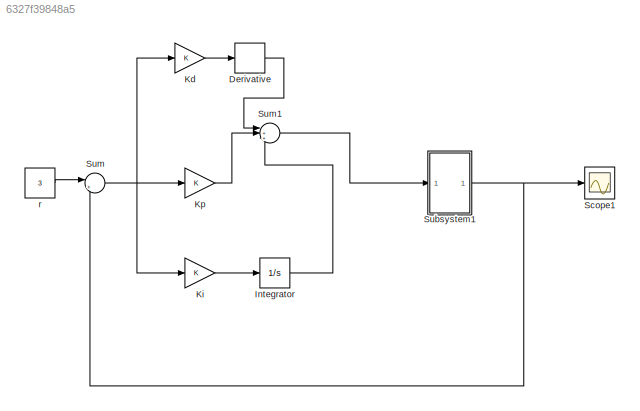
MODEL slx_6327f39848a5
KIND model
CONFIG AbsTol = auto
CONFIG EnableMultiTasking = off
CONFIG FixedStep = 0.01
CONFIG MaxStep = auto
CONFIG MinStep = auto
CONFIG RelTol = 1e-3
CONFIG SampleTimeConstraint = Unconstrained
CONFIG SolverName = FixedStepAuto
CONFIG StartTime = 0.0
CONFIG StopTime = 100
BLOCK [Derivative] Derivative
BLOCK [Integrator] Integrator
  Ports = [1, 1]
BLOCK [Gain] Kd
BLOCK [Gain] Ki
BLOCK [Gain] Kp
BLOCK [Scope] Scope1
  Floating = off
  NumInputPorts = 1
  Ports = [1]
  ScopeSpecificationString = Simulink.scopes.TimeScopeBlockCfg('CurrentConfiguration', extmgr.ConfigurationSet(extmgr.Configuration('Core','General UI',true),extmgr.Configuration('Core','Source UI',true),extmgr.Configuration('Sources','WiredSimulink',true,'DataLoggingVariableName','ScopeData1'),extmgr.Configuration('Visuals','Time Domain',true,'SerializedDisplays',{struct('MinYLimReal','-25009024696095380996715678333512495265...<+2184ch>
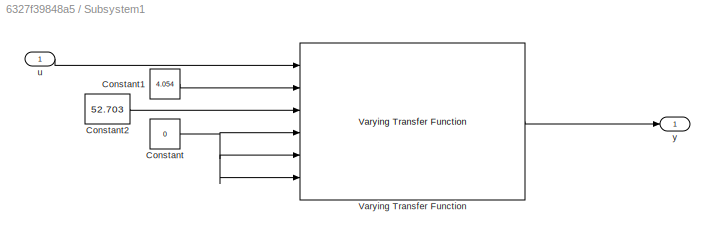
BLOCK [SubSystem] Subsystem1
  Ports = [1, 1]
  RequestExecContextInheritance = off
BLOCK [Constant] Subsystem1/Constant
  Value = 0
BLOCK [Constant] Subsystem1/Constant1
  Value = 4.054
BLOCK [Constant] Subsystem1/Constant2
  Value = 52.703
BLOCK [Reference] Subsystem1/Varying Transfer Function  REF=cstblocks/Linear Parameter Varying/Varying Transfer Function
  Ports = [6, 1]
  SourceBlock = cstblocks/Linear Parameter Varying/Varying Transfer Function
  SourceProductBaseCode = CT
  SourceType = Varying Transfer Function
BLOCK [Inport] Subsystem1/u
BLOCK [Outport] Subsystem1/y
BLOCK [Sum] Sum
  Inputs = |+-
  Ports = [2, 1]
BLOCK [Sum] Sum1
  Inputs = |+++
  Ports = [3, 1]
BLOCK [Constant] r
  Value = 3
LINE Derivative:1 -> Sum1:1
LINE Integrator:1 -> Sum1:3
LINE Kd:1 -> Derivative:1
LINE Ki:1 -> Integrator:1
LINE Kp:1 -> Sum1:2
LINE Subsystem1/Constant1:1 -> Subsystem1/Varying Transfer Function:2
LINE Subsystem1/Constant2:1 -> Subsystem1/Varying Transfer Function:3
NET Subsystem1/Constant:1 -> Subsystem1/Varying Transfer Function:4, Subsystem1/Varying Transfer Function:5, Subsystem1/Varying Transfer Function:6
LINE Subsystem1/Varying Transfer Function:1 -> Subsystem1/y:1
LINE Subsystem1/u:1 -> Subsystem1/Varying Transfer Function:1
NET Subsystem1:1 -> Scope1:1, Sum:2
LINE Sum1:1 -> Subsystem1:1
NET Sum:1 -> Kd:1, Ki:1, Kp:1
LINE r:1 -> Sum:1
note: NET lines group one-source signal fan-out (src -> all destinations, sorted); 1:1 wires keep LINE
